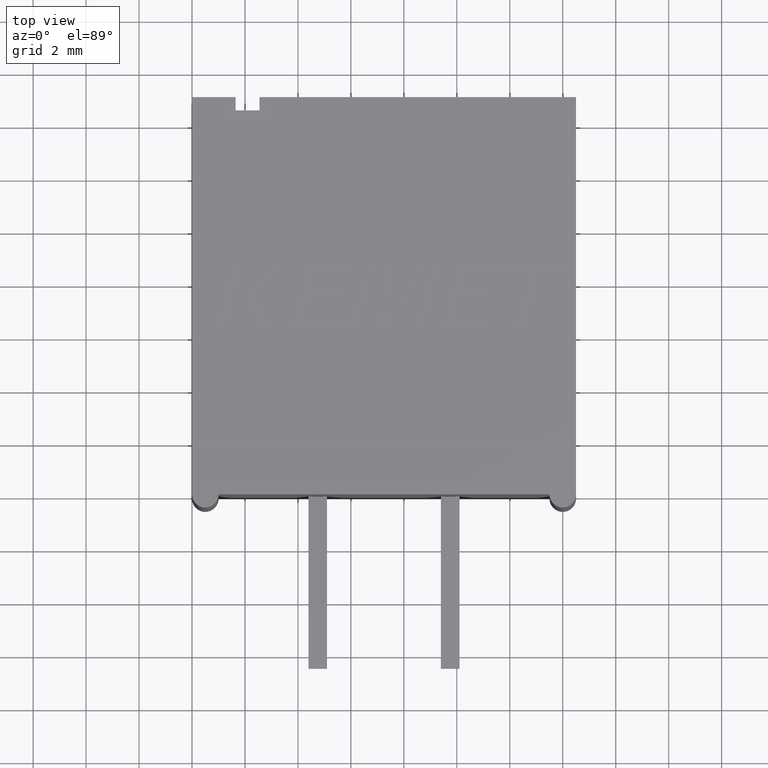
[diagram: clean part render]
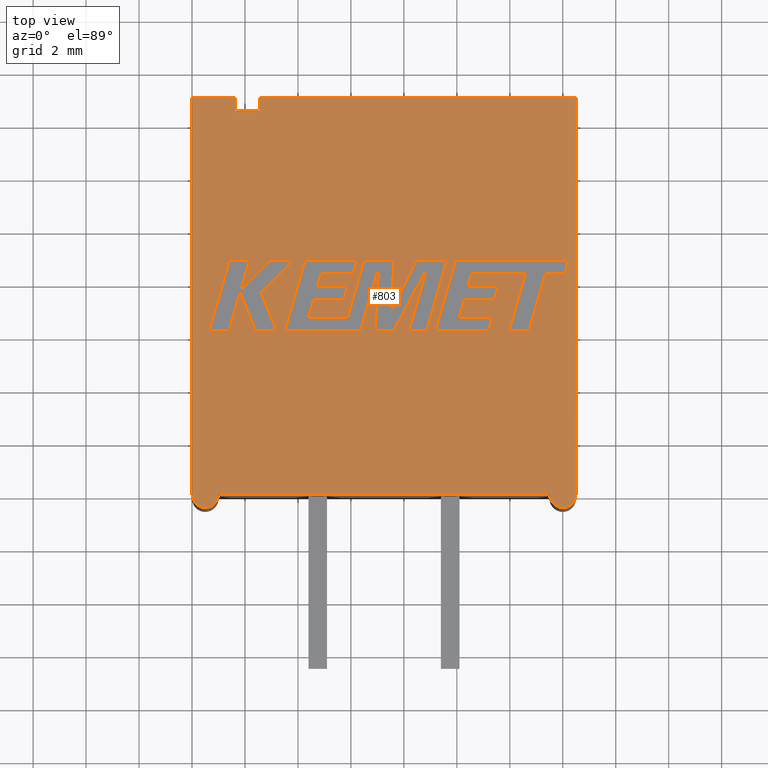
[diagram: same view with one face highlighted and labeled with its STEP entity id]
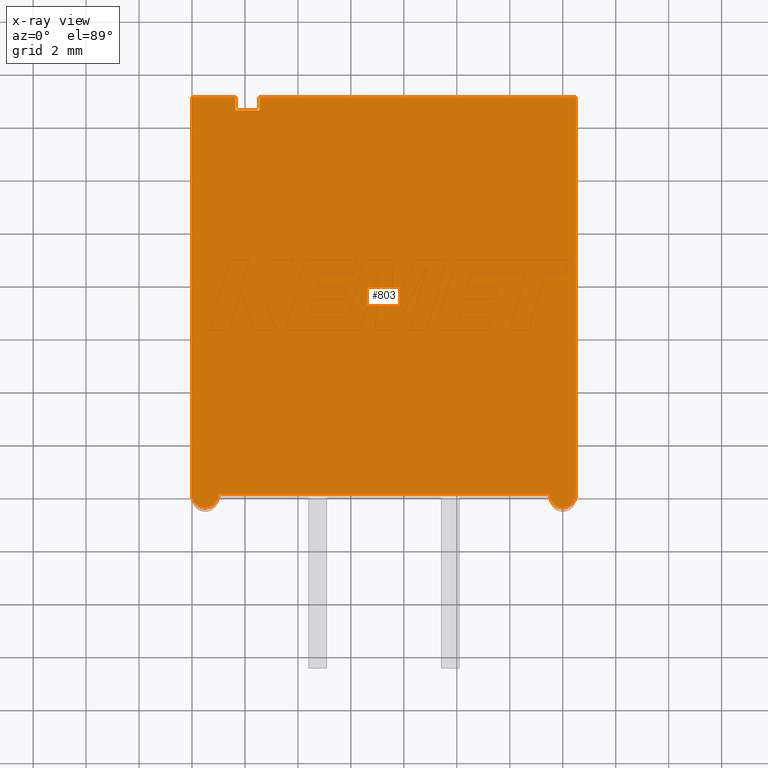
[diagram: x-ray of the same camera — body ghosted, the highlighted face saturated]
A machine part, top view. The second image highlights one B-rep face of the part: STEP entity #803.
The next image is the same camera in x-ray: the body ghosted, the highlighted face saturated — about 0% of this face is hidden behind the body in this view.
In plain terms, the highlighted planar face has unit normal (0, 0, -1).
Its self-contained STEP definition (entity closure, byte-faithful):
#14 = DIRECTION ( 'NONE',  ( -1.000000000000000000, 0.0000000000000000000, 0.0000000000000000000 ) ) ;
#234 = CARTESIAN_POINT ( 'NONE',  ( 13.99999999999999800, 0.0000000000000000000, 9.500000000000000000 ) ) ;
#256 = EDGE_LOOP ( 'NONE', ( #2444, #1964, #1379, #1452, #1134, #1549, #969, #1403, #1428, #606 ) ) ;
#317 = DIRECTION ( 'NONE',  ( 4.336808689942013300E-016, -1.000000000000000000, 0.0000000000000000000 ) ) ;
#344 = VECTOR ( 'NONE', #2599, 1000.000000000000000 ) ;
#401 = CARTESIAN_POINT ( 'NONE',  ( 0.0000000000000000000, 15.00000000000000000, 9.500000000000000000 ) ) ;
#418 = CARTESIAN_POINT ( 'NONE',  ( 0.0000000000000000000, 15.00000000000000000, 9.500000000000000000 ) ) ;
#442 = EDGE_CURVE ( 'NONE', #1137, #2414, #841, .T. ) ;
#487 = DIRECTION ( 'NONE',  ( 8.673617379884026600E-016, 1.000000000000000000, 0.0000000000000000000 ) ) ;
#536 = DIRECTION ( 'NONE',  ( -1.000000000000000000, 0.0000000000000000000, -0.0000000000000000000 ) ) ;
#592 = CARTESIAN_POINT ( 'NONE',  ( -0.0000000000000000000, 14.49999999999999800, 9.500000000000000000 ) ) ;
#603 = CARTESIAN_POINT ( 'NONE',  ( 1.647635000000000200, 14.49999999999999800, 9.500000000000000000 ) ) ;
#606 = ORIENTED_EDGE ( 'NONE', *, *, #1701, .F. ) ;
#633 = VERTEX_POINT ( 'NONE', #2715 ) ;
#649 = AXIS2_PLACEMENT_3D ( 'NONE', #799, #1636, #536 ) ;
#651 = CIRCLE ( 'NONE', #909, 0.5000000000000004400 ) ;
#743 = LINE ( 'NONE', #998, #2151 ) ;
#799 = CARTESIAN_POINT ( 'NONE',  ( 0.0000000000000000000, 0.0000000000000000000, 9.500000000000000000 ) ) ;
#803 = ADVANCED_FACE ( 'NONE', ( #1921 ), #2691, .F. ) ;
#809 = DIRECTION ( 'NONE',  ( 1.000000000000000000, 0.0000000000000000000, 0.0000000000000000000 ) ) ;
#841 = LINE ( 'NONE', #2219, #1896 ) ;
#871 = VERTEX_POINT ( 'NONE', #603 ) ;
#882 = LINE ( 'NONE', #401, #1761 ) ;
#909 = AXIS2_PLACEMENT_3D ( 'NONE', #234, #2609, #14 ) ;
#913 = VECTOR ( 'NONE', #487, 1000.000000000000000 ) ;
#969 = ORIENTED_EDGE ( 'NONE', *, *, #1543, .F. ) ;
#981 = CARTESIAN_POINT ( 'NONE',  ( 14.50000000000000000, 0.0000000000000000000, 9.500000000000000000 ) ) ;
#987 = EDGE_CURVE ( 'NONE', #1779, #633, #1541, .T. ) ;
#998 = CARTESIAN_POINT ( 'NONE',  ( 1.647635000000006400, 7.145477785852637100E-016, 9.500000000000000000 ) ) ;
#1024 = DIRECTION ( 'NONE',  ( 1.000000000000000000, 0.0000000000000000000, 0.0000000000000000000 ) ) ;
#1055 = CIRCLE ( 'NONE', #2354, 0.5000000000000000000 ) ;
#1115 = VECTOR ( 'NONE', #1580, 1000.000000000000000 ) ;
#1134 = ORIENTED_EDGE ( 'NONE', *, *, #1430, .T. ) ;
#1137 = VERTEX_POINT ( 'NONE', #981 ) ;
#1184 = CARTESIAN_POINT ( 'NONE',  ( 14.49999999999999800, 15.00000000000000000, 9.500000000000000000 ) ) ;
#1186 = CARTESIAN_POINT ( 'NONE',  ( 13.49999999999999500, 0.0000000000000000000, 9.500000000000000000 ) ) ;
#1274 = CARTESIAN_POINT ( 'NONE',  ( 0.5000000000000000000, 0.0000000000000000000, 9.500000000000000000 ) ) ;
#1379 = ORIENTED_EDGE ( 'NONE', *, *, #1446, .T. ) ;
#1385 = EDGE_CURVE ( 'NONE', #2414, #2640, #1734, .T. ) ;
#1403 = ORIENTED_EDGE ( 'NONE', *, *, #442, .T. ) ;
#1404 = CARTESIAN_POINT ( 'NONE',  ( 2.547635000000000500, 14.49999999999999800, 9.500000000000000000 ) ) ;
#1428 = ORIENTED_EDGE ( 'NONE', *, *, #1385, .T. ) ;
#1430 = EDGE_CURVE ( 'NONE', #633, #2676, #1055, .T. ) ;
#1446 = EDGE_CURVE ( 'NONE', #1859, #1779, #882, .T. ) ;
#1452 = ORIENTED_EDGE ( 'NONE', *, *, #987, .T. ) ;
#1468 = EDGE_CURVE ( 'NONE', #871, #2590, #1503, .T. ) ;
#1503 = LINE ( 'NONE', #592, #2279 ) ;
#1505 = VECTOR ( 'NONE', #2558, 1000.000000000000000 ) ;
#1532 = DIRECTION ( 'NONE',  ( -1.156482317317871500E-016, 1.000000000000000000, 0.0000000000000000000 ) ) ;
#1541 = LINE ( 'NONE', #2165, #344 ) ;
#1543 = EDGE_CURVE ( 'NONE', #1137, #1819, #651, .T. ) ;
#1549 = ORIENTED_EDGE ( 'NONE', *, *, #2377, .T. ) ;
#1580 = DIRECTION ( 'NONE',  ( 1.000000000000000000, 0.0000000000000000000, 0.0000000000000000000 ) ) ;
#1636 = DIRECTION ( 'NONE',  ( 0.0000000000000000000, 0.0000000000000000000, -1.000000000000000000 ) ) ;
#1701 = EDGE_CURVE ( 'NONE', #2590, #2640, #2280, .T. ) ;
#1734 = LINE ( 'NONE', #418, #1505 ) ;
#1761 = VECTOR ( 'NONE', #1876, 1000.000000000000000 ) ;
#1779 = VERTEX_POINT ( 'NONE', #2666 ) ;
#1802 = CARTESIAN_POINT ( 'NONE',  ( 0.9999999999999995600, 0.0000000000000000000, 9.500000000000000000 ) ) ;
#1819 = VERTEX_POINT ( 'NONE', #1186 ) ;
#1859 = VERTEX_POINT ( 'NONE', #2481 ) ;
#1876 = DIRECTION ( 'NONE',  ( -1.000000000000000000, -0.0000000000000000000, -0.0000000000000000000 ) ) ;
#1896 = VECTOR ( 'NONE', #1532, 1000.000000000000000 ) ;
#1921 = FACE_OUTER_BOUND ( 'NONE', #256, .T. ) ;
#1946 = CARTESIAN_POINT ( 'NONE',  ( 2.547634999999987700, -2.209721121360073600E-015, 9.500000000000000000 ) ) ;
#1964 = ORIENTED_EDGE ( 'NONE', *, *, #2604, .F. ) ;
#2151 = VECTOR ( 'NONE', #317, 1000.000000000000000 ) ;
#2165 = CARTESIAN_POINT ( 'NONE',  ( 0.0000000000000000000, 0.0000000000000000000, 9.500000000000000000 ) ) ;
#2212 = LINE ( 'NONE', #2460, #1115 ) ;
#2219 = CARTESIAN_POINT ( 'NONE',  ( 14.50000000000000000, 0.0000000000000000000, 9.500000000000000000 ) ) ;
#2279 = VECTOR ( 'NONE', #1024, 1000.000000000000000 ) ;
#2280 = LINE ( 'NONE', #1946, #913 ) ;
#2354 = AXIS2_PLACEMENT_3D ( 'NONE', #1274, #2523, #809 ) ;
#2377 = EDGE_CURVE ( 'NONE', #2676, #1819, #2212, .T. ) ;
#2414 = VERTEX_POINT ( 'NONE', #1184 ) ;
#2444 = ORIENTED_EDGE ( 'NONE', *, *, #1468, .F. ) ;
#2460 = CARTESIAN_POINT ( 'NONE',  ( 0.0000000000000000000, 0.0000000000000000000, 9.500000000000000000 ) ) ;
#2481 = CARTESIAN_POINT ( 'NONE',  ( 1.647635000000000200, 15.00000000000000000, 9.500000000000000000 ) ) ;
#2523 = DIRECTION ( 'NONE',  ( 0.0000000000000000000, 0.0000000000000000000, 1.000000000000000000 ) ) ;
#2558 = DIRECTION ( 'NONE',  ( -1.000000000000000000, -0.0000000000000000000, -0.0000000000000000000 ) ) ;
#2590 = VERTEX_POINT ( 'NONE', #1404 ) ;
#2599 = DIRECTION ( 'NONE',  ( -0.0000000000000000000, -1.000000000000000000, -0.0000000000000000000 ) ) ;
#2604 = EDGE_CURVE ( 'NONE', #1859, #871, #743, .T. ) ;
#2609 = DIRECTION ( 'NONE',  ( -0.0000000000000000000, -0.0000000000000000000, -1.000000000000000000 ) ) ;
#2640 = VERTEX_POINT ( 'NONE', #2696 ) ;
#2666 = CARTESIAN_POINT ( 'NONE',  ( 0.0000000000000000000, 15.00000000000000000, 9.500000000000000000 ) ) ;
#2676 = VERTEX_POINT ( 'NONE', #1802 ) ;
#2691 = PLANE ( 'NONE',  #649 ) ;
#2696 = CARTESIAN_POINT ( 'NONE',  ( 2.547635000000000500, 15.00000000000000000, 9.500000000000000000 ) ) ;
#2715 = CARTESIAN_POINT ( 'NONE',  ( 0.0000000000000000000, 0.0000000000000000000, 9.500000000000000000 ) ) ;